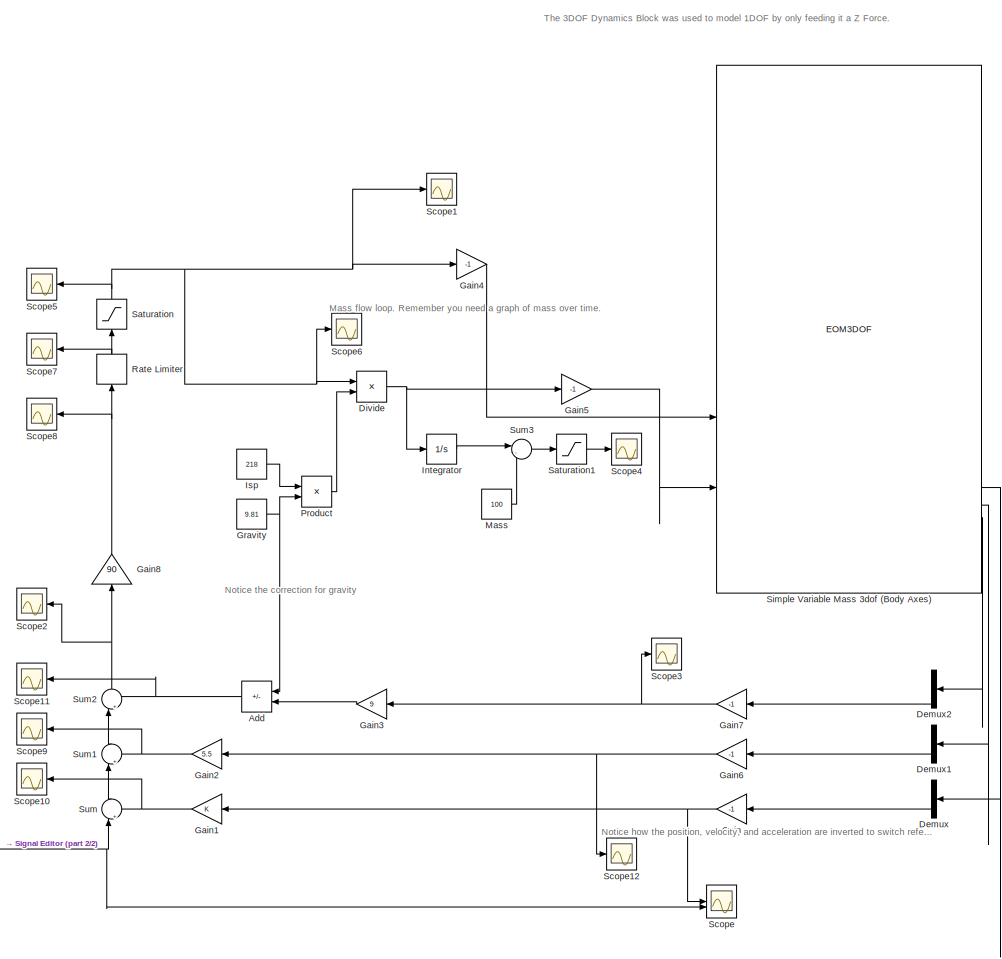
[diagram: root canvas - part 1/2, center side, full height]
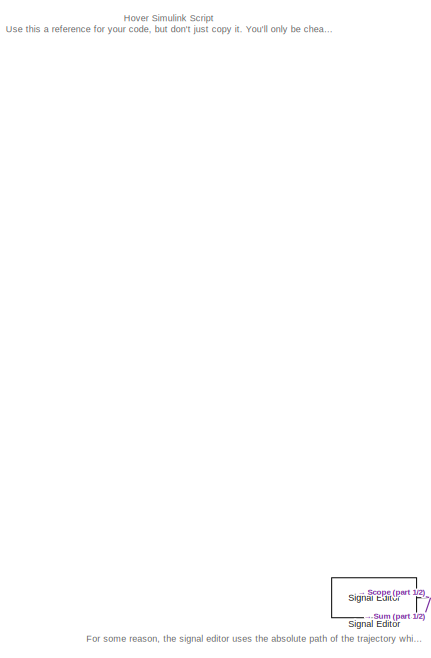
[diagram: root canvas - part 2/2, middle left region]
MODEL slx_9e7cbed5a54b
KIND model
CONFIG AbsTol = auto
CONFIG EnableMultiTasking = off
CONFIG FixedStep = auto
CONFIG MaxStep = auto
CONFIG MinStep = auto
CONFIG RelTol = 1e-3
CONFIG SampleTimeConstraint = Unconstrained
CONFIG SolverName = VariableStepAuto
CONFIG StartTime = 0.0
CONFIG StopTime = 90
BLOCK [Sum] Add
  IconShape = rectangular
  Inputs = -+
  NameLocation = top
BLOCK [Demux] Demux
  NameLocation = top
  Outputs = 2
BLOCK [Demux] Demux1
  NameLocation = top
  Outputs = 2
BLOCK [Demux] Demux2
  NameLocation = top
  Outputs = 2
BLOCK [Product] Divide
  Inputs = */
BLOCK [Gain] Gain
  Gain = -1
  NameLocation = top
BLOCK [Gain] Gain1
  NameLocation = top
BLOCK [Gain] Gain2
  Gain = 5.5
  NameLocation = top
BLOCK [Gain] Gain3
  Gain = 9
  NameLocation = top
BLOCK [Gain] Gain4
  Gain = -1
BLOCK [Gain] Gain5
  Gain = -1
BLOCK [Gain] Gain6
  Gain = -1
  NameLocation = top
BLOCK [Gain] Gain7
  Gain = -1
  NameLocation = top
BLOCK [Gain] Gain8
  Gain = 90
  NameLocation = right
BLOCK [Constant] Gravity
  Value = 9.81
BLOCK [Integrator] Integrator
BLOCK [Constant] Isp
  Value = 218
BLOCK [Constant] Mass
  Value = 100
BLOCK [Product] Product
BLOCK [RateLimiter] Rate Limiter
  FallingSlewLimit = -500
  NameLocation = right
  RisingSlewLimit = 500
  SampleTimeMode = inherited
BLOCK [Saturate] Saturation
  LowerLimit = 500
  NameLocation = right
  UpperLimit = 2400
  ZeroCross = off
BLOCK [Saturate] Saturation1
  LowerLimit = 50
  UpperLimit = 100
BLOCK [Scope] Scope
  ActiveDisplayYMaximum = 119.59022524663359
  ActiveDisplayYMinimum = -34.763422353504552
  Floating = off
  GraphicalSettings = {"AxesScalingProperties":{"AlignXAxis":"Center","AlignYAxis":"Center","AutoScaleXAxisLimits":false,"AxesScaling":"Manual","AxesScalingNumUpdates":10,"ExpandOnly":true,"ScaleAxesLimitsAtStop":false,"XAxisDataRange":100,"YAxisDataRange":80},"DisplayProperties":{"ColorOrder":["auto","auto","auto","auto","auto","auto","auto","auto","auto","auto","auto","auto","auto","auto","auto","auto","auto","auto",...<+2127ch>
  MultipleDisplayCache = [{"MaxYLimMag":114.28841508640872,"MaxYLimReal":119.59022524663359,"MinYLimMag":0,"MinYLimReal":-34.763422353504552,"PlotAsMagnitudePhase":false,"ShowGrid":true,"ShowLegend":false,"Title":"%<SignalLabel>","YLabel":""}]
  NumInputPorts = 2
  ScopeFrameLocation = window
  WasSavedAsWebScope = on
  WindowPosition = [906.000000,176.000000,560.000000,420.000000,]
BLOCK [Scope] Scope1
  ActiveDisplayYMaximum = 1362.7884615384614
  ActiveDisplayYMinimum = 404.13461538461542
  DataLoggingVariableName = ScopeData1
  Floating = off
  GraphicalSettings = {"Style":{"BackgroundColor":[0.12941176470588237,0.12941176470588237,0.12941176470588237],"AxesColor":[0.07058823529411765,0.07058823529411765,0.07058823529411765],"LabelsColor":[0.8509803921568627,0.8509803921568627,0.8509803921568627],"PreserveColors":false,"Visible":[true],"LineStyle":["-"],"LineWidth":[1.5],"BarWidth":[0.9],"LineColor":["auto"],"LineFaceAlpha":[1],"LineEdgeAlpha":[1],"Marker":...<+2033ch>
  MultipleDisplayCache = [{"MaxYLimMag":1362.7884615384614,"MaxYLimReal":1362.7884615384614,"MinYLimMag":404.13461538461542,"MinYLimReal":404.13461538461542,"PlotAsMagnitudePhase":false,"ShowGrid":true,"ShowLegend":false,"Title":"%<SignalLabel>","YLabel":""}]
  NumInputPorts = 1
  ScopeFrameLocation = window
  WasSavedAsWebScope = on
  WindowPosition = [573.000000,323.000000,560.000000,420.000000,]
BLOCK [Scope] Scope10
  ActiveDisplayYMaximum = 1
  ActiveDisplayYMinimum = -1
  DataLoggingVariableName = ScopeData10
  Floating = off
  GraphicalSettings = {"Style":{"BackgroundColor":[0.12941176470588237,0.12941176470588237,0.12941176470588237],"AxesColor":[0.07058823529411765,0.07058823529411765,0.07058823529411765],"LabelsColor":[0.8509803921568627,0.8509803921568627,0.8509803921568627],"PreserveColors":false,"Visible":[true],"LineStyle":["-"],"LineWidth":[1.5],"BarWidth":[0.9],"LineColor":["auto"],"LineFaceAlpha":[1],"LineEdgeAlpha":[1],"Marker":...<+1986ch>
  MultipleDisplayCache = [{"MaxYLimMag":1,"MaxYLimReal":1,"MinYLimMag":0,"MinYLimReal":-1,"PlotAsMagnitudePhase":false,"ShowGrid":true,"ShowLegend":false,"Title":"%<SignalLabel>","YLabel":""}]
  NameLocation = top
  NumInputPorts = 1
  ScopeFrameLocation = window
  WasSavedAsWebScope = on
  WindowPosition = [573.000000,323.000000,560.000000,420.000000,]
BLOCK [Scope] Scope11
  ActiveDisplayYMaximum = 38.633404117126219
  ActiveDisplayYMinimum = -47.394161296045475
  DataLoggingVariableName = ScopeData11
  Floating = off
  GraphicalSettings = {"Style":{"BackgroundColor":[0.12941176470588237,0.12941176470588237,0.12941176470588237],"AxesColor":[0.07058823529411765,0.07058823529411765,0.07058823529411765],"LabelsColor":[0.8509803921568627,0.8509803921568627,0.8509803921568627],"PreserveColors":false,"Visible":[true],"LineStyle":["-"],"LineWidth":[1.5],"BarWidth":[0.9],"LineColor":["auto"],"LineFaceAlpha":[1],"LineEdgeAlpha":[1],"Marker":...<+1888ch>
  MultipleDisplayCache = [{"MaxYLimMag":47.394161296045475,"MaxYLimReal":38.633404117126219,"MinYLimMag":0,"MinYLimReal":-47.394161296045475,"PlotAsMagnitudePhase":false,"ShowGrid":true,"ShowLegend":false,"Title":"%<SignalLabel>","YLabel":""}]
  NameLocation = top
  NumInputPorts = 1
  ScopeFrameLocation = window
  WasSavedAsWebScope = on
  WindowPosition = [573.000000,323.000000,560.000000,420.000000,]
BLOCK [Scope] Scope12
  ActiveDisplayYMaximum = 14.310134554357177
  ActiveDisplayYMinimum = -17.386779443318023
  DataLoggingVariableName = ScopeData12
  Floating = off
  GraphicalSettings = {"Style":{"BackgroundColor":[0.12941176470588237,0.12941176470588237,0.12941176470588237],"AxesColor":[0.07058823529411765,0.07058823529411765,0.07058823529411765],"LabelsColor":[0.8509803921568627,0.8509803921568627,0.8509803921568627],"PreserveColors":false,"Visible":[true],"LineStyle":["-"],"LineWidth":[1.5],"BarWidth":[0.9],"LineColor":["auto"],"LineFaceAlpha":[1],"LineEdgeAlpha":[1],"Marker":...<+1892ch>
  MultipleDisplayCache = [{"MaxYLimMag":17.386779443318023,"MaxYLimReal":14.310134554357177,"MinYLimMag":0,"MinYLimReal":-17.386779443318023,"PlotAsMagnitudePhase":false,"ShowGrid":true,"ShowLegend":false,"Title":"%<SignalLabel>","YLabel":""}]
  NumInputPorts = 1
  ScopeFrameLocation = window
  WasSavedAsWebScope = on
  WindowPosition = [324.000000,301.000000,560.000000,420.000000,]
BLOCK [Scope] Scope2
  ActiveDisplayYMaximum = 185.26560397397645
  ActiveDisplayYMinimum = -32.538676785765546
  DataLoggingVariableName = ScopeData2
  Floating = off
  GraphicalSettings = {"AxesScalingProperties":{"AlignXAxis":"Center","AlignYAxis":"Center","AutoScaleXAxisLimits":false,"AxesScaling":"Manual","AxesScalingNumUpdates":10,"ExpandOnly":true,"ScaleAxesLimitsAtStop":false,"XAxisDataRange":100,"YAxisDataRange":80},"DisplayProperties":{"ColorOrder":["auto","auto","auto","auto","auto","auto","auto","auto","auto","auto","auto","auto","auto","auto","auto","auto","auto","auto",...<+2000ch>
  MultipleDisplayCache = [{"MaxYLimMag":88.168333236650355,"MaxYLimReal":185.26560397397645,"MinYLimMag":0,"MinYLimReal":-32.538676785765546,"PlotAsMagnitudePhase":false,"ShowGrid":true,"ShowLegend":false,"Title":"%<SignalLabel>","YLabel":""}]
  NameLocation = top
  NumInputPorts = 1
  ScopeFrameLocation = window
  WasSavedAsWebScope = on
  WindowPosition = [573.000000,323.000000,560.000000,420.000000,]
BLOCK [Scope] Scope3
  ActiveDisplayYMaximum = 78.859663187536924
  ActiveDisplayYMinimum = -53.073675047329495
  DataLoggingVariableName = ScopeData3
  Floating = off
  GraphicalSettings = {"Style":{"BackgroundColor":[0.12941176470588237,0.12941176470588237,0.12941176470588237],"AxesColor":[0.07058823529411765,0.07058823529411765,0.07058823529411765],"LabelsColor":[0.8509803921568627,0.8509803921568627,0.8509803921568627],"PreserveColors":false,"Visible":[true],"LineStyle":["-"],"LineWidth":[1.5],"BarWidth":[0.9],"LineColor":["auto"],"LineFaceAlpha":[1],"LineEdgeAlpha":[1],"Marker":...<+1991ch>
  MultipleDisplayCache = [{"MaxYLimMag":78.859663187536924,"MaxYLimReal":78.859663187536924,"MinYLimMag":0,"MinYLimReal":-53.073675047329495,"PlotAsMagnitudePhase":false,"ShowGrid":true,"ShowLegend":false,"Title":"%<SignalLabel>","YLabel":""}]
  NumInputPorts = 1
  ScopeFrameLocation = window
  WasSavedAsWebScope = on
  WindowPosition = [573.000000,323.000000,560.000000,420.000000,]
BLOCK [Scope] Scope4
  ActiveDisplayYMaximum = 102.94357945039437
  ActiveDisplayYMinimum = 62.675720857132347
  DataLoggingVariableName = ScopeData4
  Floating = off
  GraphicalSettings = {"AxesScalingProperties":{"AlignXAxis":"Center","AlignYAxis":"Center","AutoScaleXAxisLimits":false,"AxesScaling":"Manual","AxesScalingNumUpdates":10,"ExpandOnly":true,"ScaleAxesLimitsAtStop":false,"XAxisDataRange":100,"YAxisDataRange":80},"DisplayProperties":{"ColorOrder":["auto","auto","auto","auto","auto","auto","auto","auto","auto","auto","auto","auto","auto","auto","auto","auto","auto","auto",...<+1912ch>
  MultipleDisplayCache = [{"MaxYLimMag":104.22812515229251,"MaxYLimReal":102.94357945039437,"MinYLimMag":61.9468736293674,"MinYLimReal":62.675720857132347,"PlotAsMagnitudePhase":false,"ShowGrid":true,"ShowLegend":false,"Title":"%<SignalLabel>","YLabel":""}]
  NumInputPorts = 1
  ScopeFrameLocation = window
  WasSavedAsWebScope = on
  WindowPosition = [573.000000,323.000000,560.000000,420.000000,]
BLOCK [Scope] Scope5
  ActiveDisplayYMaximum = 2637.5
  ActiveDisplayYMinimum = 262.50000000000006
  DataLoggingVariableName = ScopeData5
  Floating = off
  GraphicalSettings = {"Style":{"BackgroundColor":[0.12941176470588237,0.12941176470588237,0.12941176470588237],"AxesColor":[0.07058823529411765,0.07058823529411765,0.07058823529411765],"LabelsColor":[0.8509803921568627,0.8509803921568627,0.8509803921568627],"PreserveColors":false,"Visible":[true],"LineStyle":["-"],"LineWidth":[1.5],"BarWidth":[0.9],"LineColor":["auto"],"LineFaceAlpha":[1],"LineEdgeAlpha":[1],"Marker":...<+2033ch>
  MultipleDisplayCache = [{"MaxYLimMag":2637.5,"MaxYLimReal":2637.5,"MinYLimMag":262.50000000000006,"MinYLimReal":262.50000000000006,"PlotAsMagnitudePhase":false,"ShowGrid":true,"ShowLegend":false,"Title":"%<SignalLabel>","YLabel":""}]
  NameLocation = top
  NumInputPorts = 1
  ScopeFrameLocation = window
  WasSavedAsWebScope = on
  WindowPosition = [805.000000,368.000000,560.000000,420.000000,]
BLOCK [Scope] Scope6
  ActiveDisplayYMaximum = 1
  ActiveDisplayYMinimum = -1
  DataLoggingVariableName = ScopeData6
  Floating = off
  GraphicalSettings = {"Style":{"BackgroundColor":[0.12941176470588237,0.12941176470588237,0.12941176470588237],"AxesColor":[0.07058823529411765,0.07058823529411765,0.07058823529411765],"LabelsColor":[0.8509803921568627,0.8509803921568627,0.8509803921568627],"PreserveColors":false,"Visible":[true],"LineStyle":["-"],"LineWidth":[1.5],"BarWidth":[0.9],"LineColor":["auto"],"LineFaceAlpha":[1],"LineEdgeAlpha":[1],"Marker":...<+1902ch>
  MultipleDisplayCache = [{"MaxYLimMag":1,"MaxYLimReal":1,"MinYLimMag":0,"MinYLimReal":-1,"PlotAsMagnitudePhase":false,"ShowGrid":true,"ShowLegend":false,"Title":"%<SignalLabel>","YLabel":""}]
  NumInputPorts = 1
  ScopeFrameLocation = window
  WasSavedAsWebScope = on
  WindowPosition = [573.000000,323.000000,560.000000,420.000000,]
BLOCK [Scope] Scope7
  ActiveDisplayYMaximum = 3667.8043798582971
  ActiveDisplayYMinimum = -867.34301243195137
  DataLoggingVariableName = ScopeData7
  Floating = off
  GraphicalSettings = {"AxesScalingProperties":{"AlignXAxis":"Center","AlignYAxis":"Center","AutoScaleXAxisLimits":false,"AxesScaling":"Manual","AxesScalingNumUpdates":10,"ExpandOnly":true,"ScaleAxesLimitsAtStop":false,"XAxisDataRange":100,"YAxisDataRange":80},"DisplayProperties":{"ColorOrder":["auto","auto","auto","auto","auto","auto","auto","auto","auto","auto","auto","auto","auto","auto","auto","auto","auto","auto",...<+2016ch>
  MultipleDisplayCache = [{"MaxYLimMag":3020.7142857142849,"MaxYLimReal":3667.8043798582971,"MinYLimMag":0,"MinYLimReal":-867.34301243195137,"PlotAsMagnitudePhase":false,"ShowGrid":true,"ShowLegend":false,"Title":"%<SignalLabel>","YLabel":""}]
  NameLocation = top
  NumInputPorts = 1
  ScopeFrameLocation = window
  WasSavedAsWebScope = on
  WindowPosition = [427.000000,138.000000,961.000000,431.000000,]
BLOCK [Scope] Scope8
  ActiveDisplayYMaximum = 6330.7335301561079
  ActiveDisplayYMinimum = -20583.369798983134
  DataLoggingVariableName = ScopeData8
  Floating = off
  GraphicalSettings = {"AxesScalingProperties":{"AlignXAxis":"Center","AlignYAxis":"Center","AutoScaleXAxisLimits":false,"AxesScaling":"Manual","AxesScalingNumUpdates":10,"ExpandOnly":true,"ScaleAxesLimitsAtStop":false,"XAxisDataRange":100,"YAxisDataRange":80},"DisplayProperties":{"ColorOrder":["auto","auto","auto","auto","auto","auto","auto","auto","auto","auto","auto","auto","auto","auto","auto","auto","auto","auto",...<+2034ch>
  MultipleDisplayCache = [{"MaxYLimMag":280256.21262550034,"MaxYLimReal":6330.7335301561079,"MinYLimMag":0,"MinYLimReal":-20583.369798983134,"PlotAsMagnitudePhase":false,"ShowGrid":true,"ShowLegend":false,"Title":"%<SignalLabel>","YLabel":""}]
  NameLocation = top
  NumInputPorts = 1
  ScopeFrameLocation = window
  WasSavedAsWebScope = on
  WindowPosition = [450.000000,302.000000,961.000000,431.000000,]
BLOCK [Scope] Scope9
  ActiveDisplayYMaximum = 78.705740048964458
  ActiveDisplayYMinimum = -95.627286938249114
  DataLoggingVariableName = ScopeData9
  Floating = off
  GraphicalSettings = {"Style":{"BackgroundColor":[0.12941176470588237,0.12941176470588237,0.12941176470588237],"AxesColor":[0.07058823529411765,0.07058823529411765,0.07058823529411765],"LabelsColor":[0.8509803921568627,0.8509803921568627,0.8509803921568627],"PreserveColors":false,"Visible":[true],"LineStyle":["-"],"LineWidth":[1.5],"BarWidth":[0.9],"LineColor":["auto"],"LineFaceAlpha":[1],"LineEdgeAlpha":[1],"Marker":...<+1986ch>
  MultipleDisplayCache = [{"MaxYLimMag":95.627286938249114,"MaxYLimReal":78.705740048964458,"MinYLimMag":0,"MinYLimReal":-95.627286938249114,"PlotAsMagnitudePhase":false,"ShowGrid":true,"ShowLegend":false,"Title":"%<SignalLabel>","YLabel":""}]
  NameLocation = top
  NumInputPorts = 1
  ScopeFrameLocation = window
  WasSavedAsWebScope = on
  WindowPosition = [573.000000,323.000000,560.000000,420.000000,]
BLOCK [Reference] Signal Editor  REF=SignalEditorBlockLib/Signal Editor
  LibrarySourceBlock = simulink/Sources/Signal Editor
  SourceBlock = SignalEditorBlockLib/Signal Editor
  SourceType = SignalEditor
  UserDataPersistent = on
BLOCK [EOM3DOF] Simple Variable Mass 3dof (Body Axes)
  Iyy_e = 2500
  Iyy_f = 5000
  mass = 100
  mass_e = 50
  mass_f = 100
  mtype = Simple Variable
  v_ini = 0
BLOCK [Sum] Sum
  Inputs = |+-
  NameLocation = right
BLOCK [Sum] Sum1
  Inputs = |+-
  NameLocation = right
BLOCK [Sum] Sum2
  Inputs = |+-
  NameLocation = right
BLOCK [Sum] Sum3
  Inputs = |-+
ANNOTATION (root): For some reason, the signal editor uses the absolute path of the trajectory which means when you run this script, you'll probably get an error that you don't have the trajectory file. Just make a new signal editor block and load the trajectory "Hover_1.mat". Note you should be making your own trajectory.
ANNOTATION (root): Mass flow loop. Remember you need a graph of mass over time.
ANNOTATION (root): Notice how the position, velocity, and acceleration are inverted to switch reference frames
ANNOTATION (root): Notice the correction for gravity
ANNOTATION (root): The 3DOF Dynamics Block was used to model 1DOF by only feeding it a Z Force.
ANNOTATION (root): Hover Simulink Script Use this a reference for your code, but don't just copy it. You'll only be cheating yourself. Notice how this script doesn't use Simulink's in built PID controller and instead corrects using the position, velocity and acceleration directly.
NET Add:1 -> Scope11:1, Sum2:2
LINE Demux1:2 -> Gain6:1
LINE Demux2:2 -> Gain7:1
LINE Demux:2 -> Gain:1
NET Divide:1 -> Gain5:1, Integrator:1
NET Gain1:1 -> Scope10:1, Sum:2
NET Gain2:1 -> Scope9:1, Sum1:2
LINE Gain3:1 -> Add:2
LINE Gain4:1 -> Simple Variable Mass 3dof (Body Axes):2
LINE Gain5:1 -> Simple Variable Mass 3dof (Body Axes):4
NET Gain6:1 -> Gain2:1, Scope12:1
NET Gain7:1 -> Gain3:1, Scope3:1
NET Gain8:1 -> Rate Limiter:1, Scope8:1
NET Gain:1 -> Gain1:1, Scope:1
NET Gravity:1 -> Add:1, Product:2
LINE Integrator:1 -> Sum3:1
LINE Isp:1 -> Product:1
LINE Mass:1 -> Sum3:2
LINE Product:1 -> Divide:2
NET Rate Limiter:1 -> Saturation:1, Scope7:1
LINE Saturation1:1 -> Scope4:1
NET Saturation:1 -> Divide:1, Gain4:1, Scope1:1, Scope5:1, Scope6:1
NET Signal Editor:1 -> Scope:2, Sum:1
LINE Simple Variable Mass 3dof (Body Axes):4 -> Demux:1
LINE Simple Variable Mass 3dof (Body Axes):5 -> Demux1:1
LINE Simple Variable Mass 3dof (Body Axes):6 -> Demux2:1
LINE Sum1:1 -> Sum2:1
NET Sum2:1 -> Gain8:1, Scope2:1
LINE Sum3:1 -> Saturation1:1
LINE Sum:1 -> Sum1:1
note: NET lines group one-source signal fan-out (src -> all destinations, sorted); 1:1 wires keep LINE
